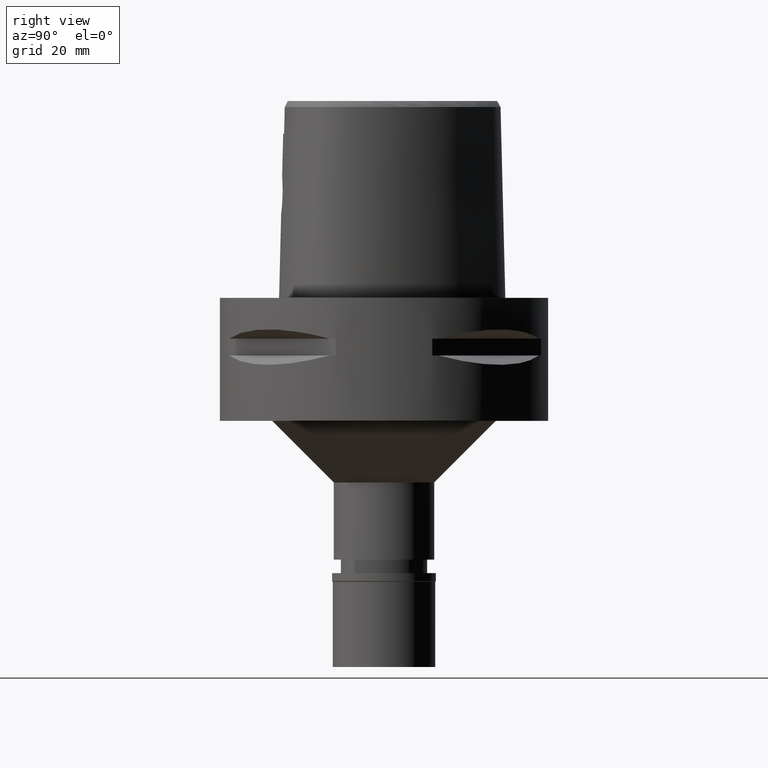
[diagram: clean part render]
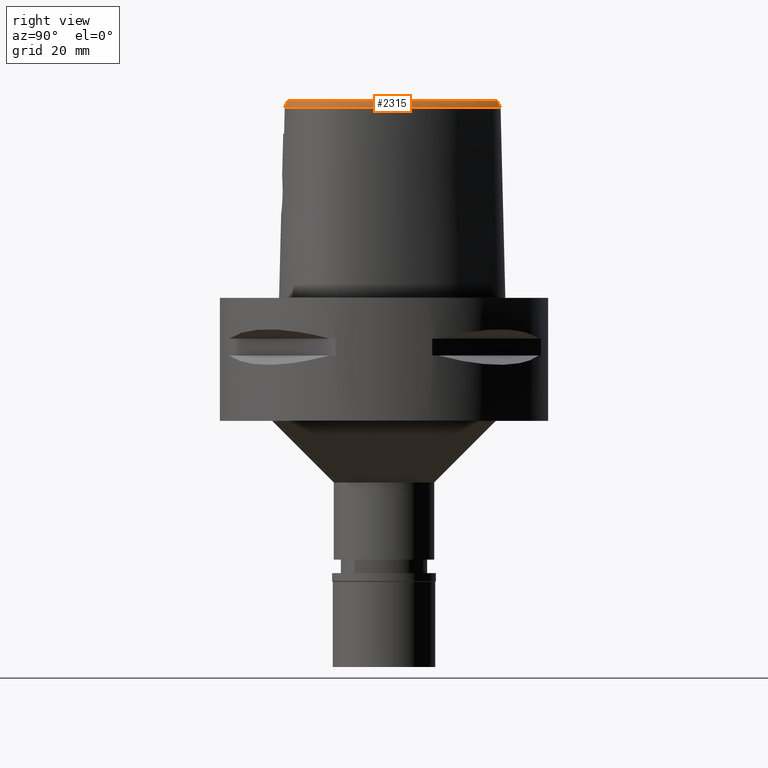
[diagram: same view with one face highlighted and labeled with its STEP entity id]
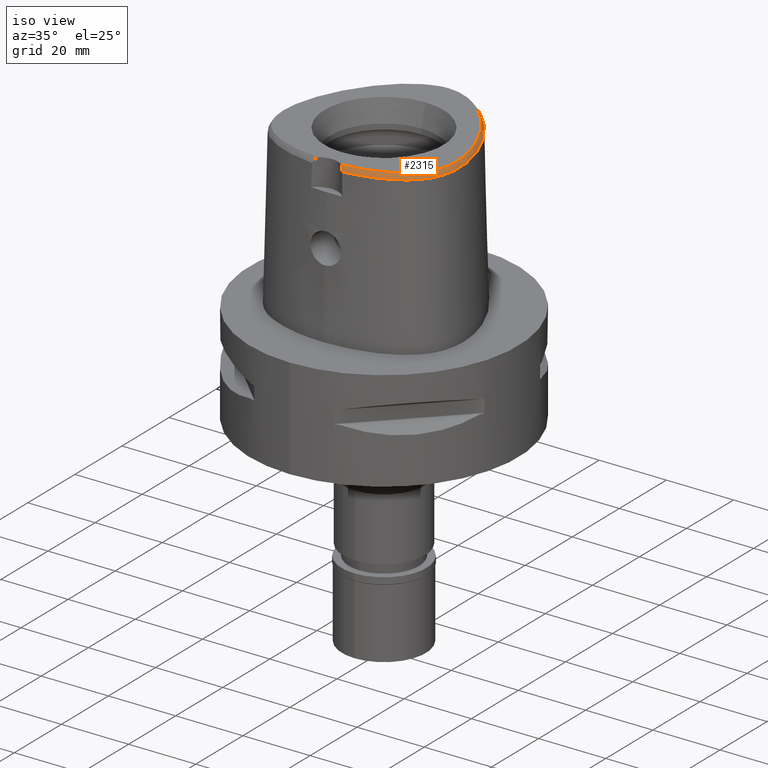
[diagram: same view with one face highlighted and labeled with its STEP entity id]
A machine part, right view. The second image highlights one B-rep face of the part: STEP entity #2315.
A second angle (iso view) of the same face is appended — the face is thin or edge-on in the first view.
In plain terms, the highlighted face is a freeform B-spline surface patch.
Its self-contained STEP definition (entity closure, byte-faithful):
#5 = CARTESIAN_POINT ( 'NONE',  ( 24.78780591084362683, 1.407047860335286282, 48.00000000000279243 ) ) ;
#14 = CARTESIAN_POINT ( 'NONE',  ( 26.57007235346000229, -8.432481388768000130, 46.33983244635000176 ) ) ;
#39 = CARTESIAN_POINT ( 'NONE',  ( 25.71441824537999565, 0.05726661908809999729, 46.95350733563999768 ) ) ;
#69 = CARTESIAN_POINT ( 'NONE',  ( 26.37690310366000190, -6.332050697974000109, 46.95350736385000090 ) ) ;
#93 = CARTESIAN_POINT ( 'NONE',  ( 11.23114004655000109, 23.21958592044000014, 47.56718160951000129 ) ) ;
#96 = CARTESIAN_POINT ( 'NONE',  ( 7.396182376302863126, -22.99483633013867845, 48.00000000000617462 ) ) ;
#109 = CARTESIAN_POINT ( 'NONE',  ( 23.18188527997486403, 6.195157684106701979, 48.00000000000365219 ) ) ;
#119 = CARTESIAN_POINT ( 'NONE',  ( 10.18191354607000143, 24.02236100422999598, 47.56718160915000482 ) ) ;
#121 = CARTESIAN_POINT ( 'NONE',  ( 9.079666835764285793, -22.67647771863789075, 48.00000000001163869 ) ) ;
#124 = CARTESIAN_POINT ( 'NONE',  ( 10.72916279449999877, -22.53955344326999821, 47.56718165904000273 ) ) ;
#144 = CARTESIAN_POINT ( 'NONE',  ( 11.01569293812999994, 22.95151098658000066, 48.18085635056999649 ) ) ;
#150 = CARTESIAN_POINT ( 'NONE',  ( 2.920846720423000420, -24.07923046652999943, 46.95350788995000357 ) ) ;
#164 = CARTESIAN_POINT ( 'NONE',  ( 23.53784508589602353, -15.81022840325140066, 46.52069747213678141 ) ) ;
#167 = CARTESIAN_POINT ( 'NONE',  ( 8.352378019026000189, 25.64042790896999691, 46.95350704522000029 ) ) ;
#172 = CARTESIAN_POINT ( 'NONE',  ( 9.271567193823999631, -23.58683500619999762, 46.33983232185000389 ) ) ;
#187 = CARTESIAN_POINT ( 'NONE',  ( 23.30296279190999797, 8.263867476382001698, 46.33983478888999485 ) ) ;
#193 = CARTESIAN_POINT ( 'NONE',  ( 13.50710554503999994, -21.33591505415000000, 48.18085629309999973 ) ) ;
#211 = CARTESIAN_POINT ( 'NONE',  ( 1.474165469676999907, 28.09254274917000060, 46.95350650487999644 ) ) ;
#216 = CARTESIAN_POINT ( 'NONE',  ( 5.615664731375999530, -23.15164468256000063, 48.18085617556000244 ) ) ;
#221 = CARTESIAN_POINT ( 'NONE',  ( 3.652533226355999751, -23.43985283522000174, 48.00000000000000000 ) ) ;
#236 = CARTESIAN_POINT ( 'NONE',  ( -0.7594463109211999630, 27.45967191047000000, 48.18085641814000297 ) ) ;
#241 = CARTESIAN_POINT ( 'NONE',  ( 20.44871707578000297, -17.59244093705000012, 48.18085634820999985 ) ) ;
#258 = CARTESIAN_POINT ( 'NONE',  ( 1.396492479134000098, 27.40898357006000197, 48.18085641341000525 ) ) ;
#262 = CARTESIAN_POINT ( 'NONE',  ( 24.02065913591000168, -15.31705758487999880, 46.33983216911000369 ) ) ;
#285 = CARTESIAN_POINT ( 'NONE',  ( 24.82176898743000137, -14.04364108708000103, 46.33983252213999293 ) ) ;
#304 = CARTESIAN_POINT ( 'NONE',  ( 0.7467112181010000516, 28.49926669294999826, 46.33983204534000322 ) ) ;
#310 = CARTESIAN_POINT ( 'NONE',  ( 18.00907884058999997, -19.27171833565000014, 48.18085629899999844 ) ) ;
#331 = CARTESIAN_POINT ( 'NONE',  ( 22.51193931559999939, -16.10581965173999919, 47.56718168458000662 ) ) ;
#356 = CARTESIAN_POINT ( 'NONE',  ( 25.44465490825999865, -11.80354635356999893, 46.95350714392999691 ) ) ;
#375 = CARTESIAN_POINT ( 'NONE',  ( 23.81116373424040589, 4.548397580874499191, 48.00000000000945022 ) ) ;
#384 = CARTESIAN_POINT ( 'NONE',  ( 22.36439718465999960, 7.835511400776001167, 48.18085606064000359 ) ) ;
#401 = CARTESIAN_POINT ( 'NONE',  ( 17.68852893097704992, 16.00958332232435666, 48.00000000000878231 ) ) ;
#411 = CARTESIAN_POINT ( 'NONE',  ( 25.97033850018999956, -4.025849490020999788, 47.56718175734000198 ) ) ;
#414 = CARTESIAN_POINT ( 'NONE',  ( 12.15683615293934139, -21.88711351951087636, 48.00000000000568434 ) ) ;
#438 = CARTESIAN_POINT ( 'NONE',  ( 26.08798196964000127, -9.324834868199001647, 46.95350686646000327 ) ) ;
#467 = CARTESIAN_POINT ( 'NONE',  ( 25.36252921206000011, -10.93171797661000078, 47.56718164795000092 ) ) ;
#482 = CARTESIAN_POINT ( 'NONE',  ( -2.553408000957999972E-11, 27.58331912251000162, 48.00000000000000000 ) ) ;
#491 = CARTESIAN_POINT ( 'NONE',  ( 14.53012782607999931, 20.17316190772000084, 47.56718259707999863 ) ) ;
#496 = CARTESIAN_POINT ( 'NONE',  ( 13.85101979429000174, -22.30866191715999847, 46.33983265495000126 ) ) ;
#507 = CARTESIAN_POINT ( 'NONE',  ( 25.79052179444476067, -6.319355031380079701, 48.00000000001389822 ) ) ;
#518 = CARTESIAN_POINT ( 'NONE',  ( 13.17234147663000066, 21.05120779910999929, 48.18085588136000297 ) ) ;
#525 = CARTESIAN_POINT ( 'NONE',  ( 4.349293971220999921, -23.28214867600999938, 48.18085613672000278 ) ) ;
#542 = CARTESIAN_POINT ( 'NONE',  ( 24.33934953590221895, -14.68006085516544346, 46.52069803563268380 ) ) ;
#546 = CARTESIAN_POINT ( 'NONE',  ( 7.225282691589000272, 25.87612818516999980, 47.56718184268999750 ) ) ;
#553 = FACE_OUTER_BOUND ( 'NONE', #3321, .T. ) ;
#567 = CARTESIAN_POINT ( 'NONE',  ( 4.386010846628000337, -24.10370528684999769, 46.70661763193000127 ) ) ;
#573 = CARTESIAN_POINT ( 'NONE',  ( 7.064821974801000160, 25.57190973225999997, 48.18085625313999287 ) ) ;
#577 = CARTESIAN_POINT ( 'NONE',  ( 3.157891514876999928, -23.72003559915999915, 47.56718206052999420 ) ) ;
#591 = CARTESIAN_POINT ( 'NONE',  ( -0.8011257464647999482, 28.14595775757999974, 46.95350647751999418 ) ) ;
#598 = CARTESIAN_POINT ( 'NONE',  ( 3.134642006960999705, -23.37701729632999914, 48.18085616210999689 ) ) ;
#616 = CARTESIAN_POINT ( 'NONE',  ( -0.01607538146699999740, 27.83300367430999955, 47.56718174155000156 ) ) ;
#623 = CARTESIAN_POINT ( 'NONE',  ( 23.86075009392999746, -14.31918854546999853, 47.56718159318999994 ) ) ;
#643 = CARTESIAN_POINT ( 'NONE',  ( 5.551463798894999968, 27.03226221538000118, 46.95350695191999790 ) ) ;
#648 = CARTESIAN_POINT ( 'NONE',  ( 22.20152521816999780, -16.93659326862999848, 46.95350694297000160 ) ) ;
#669 = CARTESIAN_POINT ( 'NONE',  ( 24.52062257262999623, -13.87739513149999837, 46.95350711729000182 ) ) ;
#687 = CARTESIAN_POINT ( 'NONE',  ( 0.7271320321002999743, 28.15584034836999905, 46.95350681673000537 ) ) ;
#693 = CARTESIAN_POINT ( 'NONE',  ( 24.52950826845000165, -12.27277311865999998, 48.18085627574999563 ) ) ;
#720 = CARTESIAN_POINT ( 'NONE',  ( 24.79527220728000003, -11.57644793548000095, 48.18085630295999522 ) ) ;
#741 = CARTESIAN_POINT ( 'NONE',  ( 25.11996355776999934, -11.68999714452000127, 47.56718172344999829 ) ) ;
#761 = CARTESIAN_POINT ( 'NONE',  ( 4.491298471527296776, 26.80158405531928878, 48.00000000000722622 ) ) ;
#770 = CARTESIAN_POINT ( 'NONE',  ( 24.90579575245000044, 3.122503042918999938, 46.95350697900999393 ) ) ;
#793 = CARTESIAN_POINT ( 'NONE',  ( 10.03889926273917865, 23.82643791975507952, 48.00000000000724754 ) ) ;
#801 = CARTESIAN_POINT ( 'NONE',  ( 24.36319900932999616, 4.746352365009999907, 46.95350679185000331 ) ) ;
#814 = CARTESIAN_POINT ( 'NONE',  ( 2.140583849880724809, 27.40603513869769614, 48.00000000000714095 ) ) ;
#824 = CARTESIAN_POINT ( 'NONE',  ( 25.90827239679000016, -10.20249352515000041, 46.95350690256000092 ) ) ;
#853 = CARTESIAN_POINT ( 'NONE',  ( 26.42669480183000275, -9.384675292628999799, 46.33983212423999731 ) ) ;
#882 = CARTESIAN_POINT ( 'NONE',  ( 10.38468740047000161, 24.30015199180000351, 46.95350686756999892 ) ) ;
#886 = CARTESIAN_POINT ( 'NONE',  ( 21.18145661121820567, -17.09850743469524659, 48.00000000000414246 ) ) ;
#888 = CARTESIAN_POINT ( 'NONE',  ( 9.200631956198998651, -23.25032489662999780, 46.95350699102999670 ) ) ;
#897 = CARTESIAN_POINT ( 'NONE',  ( 25.33687583872577420, -10.06999584063170161, 48.00000000001205080 ) ) ;
#907 = CARTESIAN_POINT ( 'NONE',  ( 9.352045218944999405, 25.01606129186999894, 46.95350701217999756 ) ) ;
#928 = CARTESIAN_POINT ( 'NONE',  ( 20.76159157987651938, 13.99289103072043972, 46.52070817855894802 ) ) ;
#930 = CARTESIAN_POINT ( 'NONE',  ( 16.77715476859999910, 17.59673481315000032, 47.56718152093999663 ) ) ;
#956 = CARTESIAN_POINT ( 'NONE',  ( 17.31425342957000169, 18.02638370828999825, 46.33983178761999966 ) ) ;
#981 = CARTESIAN_POINT ( 'NONE',  ( 14.28087360732000022, 19.93621322659999606, 48.18085593791000321 ) ) ;
#985 = CARTESIAN_POINT ( 'NONE',  ( 12.22735833469000077, -22.11919352745999845, 47.56718175666000548 ) ) ;
#1003 = CARTESIAN_POINT ( 'NONE',  ( -0.4991393622686999820, 27.47445455099000000, 48.18085634199999845 ) ) ;
#1009 = CARTESIAN_POINT ( 'NONE',  ( 15.16972260631999880, -21.80725274422000126, 46.33983231658000079 ) ) ;
#1022 = CARTESIAN_POINT ( 'NONE',  ( 26.56868348264749358, -7.988862950300611665, 46.52070085311219572 ) ) ;
#1033 = CARTESIAN_POINT ( 'NONE',  ( 21.09839278440000143, -18.39411121500000235, 46.33983214906999848 ) ) ;
#1052 = CARTESIAN_POINT ( 'NONE',  ( -0.8219654642365999964, 28.48910068113000094, 46.33983150721000044 ) ) ;
#1057 = CARTESIAN_POINT ( 'NONE',  ( 16.38663311092999919, -21.27887554714000018, 46.33983275937000457 ) ) ;
#1079 = CARTESIAN_POINT ( 'NONE',  ( 20.66527564532000127, -17.85966436302999938, 47.56718161516000265 ) ) ;
#1097 = CARTESIAN_POINT ( 'NONE',  ( 3.746843149747000279, 27.28920340988999982, 47.56718183463999594 ) ) ;
#1101 = CARTESIAN_POINT ( 'NONE',  ( 25.48324249671000175, -12.66682718605999902, 46.33983281423999756 ) ) ;
#1127 = CARTESIAN_POINT ( 'NONE',  ( 24.24901697541000090, 2.918228339474000066, 48.18085633146999669 ) ) ;
#1148 = CARTESIAN_POINT ( 'NONE',  ( 25.69293836655999996, -11.02734448011000090, 46.95350696138999780 ) ) ;
#1166 = CARTESIAN_POINT ( 'NONE',  ( 25.60516200877346549, -2.794192459352598856, 48.00000000000290612 ) ) ;
#1174 = CARTESIAN_POINT ( 'NONE',  ( 24.68980812097999689, 1.381181762872000007, 48.18085632705999899 ) ) ;
#1194 = CARTESIAN_POINT ( 'NONE',  ( 25.78811069501291087, -5.218135357747325287, 48.00000000001058709 ) ) ;
#1204 = CARTESIAN_POINT ( 'NONE',  ( 25.50456386081000204, -2.806580842982000057, 48.18085631207999597 ) ) ;
#1208 = CARTESIAN_POINT ( 'NONE',  ( 23.26225374360306475, -14.77782433120870387, 48.00000000000495248 ) ) ;
#1231 = CARTESIAN_POINT ( 'NONE',  ( 25.57319935689999824, -10.12479546886000037, 47.56718162362000157 ) ) ;
#1233 = CARTESIAN_POINT ( 'NONE',  ( 24.32795549673482327, -12.97211154200424410, 48.00000000001075762 ) ) ;
#1235 = B_SPLINE_CURVE_WITH_KNOTS ( 'NONE', 3,
 ( #1309, #567, #2124, #4833, #4363, #3981 ),
 .UNSPECIFIED., .F., .F.,
 ( 4, 1, 1, 4 ),
 ( 0.0000000000000000000, 0.3333333333333000081, 0.6666666666667000474, 1.000000000000000000 ),
 .UNSPECIFIED. ) ;
#1245 = VERTEX_POINT ( 'NONE', #4318 ) ;
#1264 = CARTESIAN_POINT ( 'NONE',  ( 21.26020906007000022, 11.53284416706000037, 46.95350704936999620 ) ) ;
#1267 = CARTESIAN_POINT ( 'NONE',  ( 3.652533226355999751, -23.43985283522000174, 48.00000000000000000 ) ) ;
#1269 = CARTESIAN_POINT ( 'NONE',  ( 4.446704805452000642, -24.30904346587999854, 46.33983409045000457 ) ) ;
#1293 = CARTESIAN_POINT ( 'NONE',  ( 18.96185304229000224, 14.61891439689000016, 47.56718187013999710 ) ) ;
#1309 = CARTESIAN_POINT ( 'NONE',  ( 4.472216720976999405, -24.20009030094000124, 46.52069014668999358 ) ) ;
#1312 = CARTESIAN_POINT ( 'NONE',  ( 25.61240997289991483, -12.23358473966909266, 46.52069916262448857 ) ) ;
#1314 = CARTESIAN_POINT ( 'NONE',  ( 18.67639059971000037, 14.42714315641999967, 48.18085624167999725 ) ) ;
#1335 = CARTESIAN_POINT ( 'NONE',  ( 17.84219066873810888, -20.48406917474678579, 46.52069465465724818 ) ) ;
#1337 = CARTESIAN_POINT ( 'NONE',  ( 19.24731548487999788, 14.81068563736000065, 46.95350749861000139 ) ) ;
#1345 = CARTESIAN_POINT ( 'NONE',  ( 10.89998046633000151, -23.20582276718000259, 46.33983231733999730 ) ) ;
#1349 = ORIENTED_EDGE ( 'NONE', *, *, #2637, .F. ) ;
#1367 = CARTESIAN_POINT ( 'NONE',  ( 20.96009135475000207, 11.36493737868999965, 47.56718168433999949 ) ) ;
#1372 = CARTESIAN_POINT ( 'NONE',  ( 7.379517170706000329, -22.89486424522999997, 48.18085633680999535 ) ) ;
#1388 = CARTESIAN_POINT ( 'NONE',  ( 3.103852640821999742, 28.16334882223000236, 46.33983265975999899 ) ) ;
#1392 = CARTESIAN_POINT ( 'NONE',  ( 23.02501420229999951, -16.56410068457999785, 46.33983241533000097 ) ) ;
#1406 = CARTESIAN_POINT ( 'NONE',  ( -0.7802860286930000111, 27.80281483401999765, 47.56718144782999502 ) ) ;
#1413 = CARTESIAN_POINT ( 'NONE',  ( 20.88183421485999958, -18.12688778901000219, 46.95350688212000279 ) ) ;
#1429 = CARTESIAN_POINT ( 'NONE',  ( -0.5271213569646999719, 28.16162122776000132, 46.95350691805999332 ) ) ;
#1439 = CARTESIAN_POINT ( 'NONE',  ( 19.46658408585000188, -19.58253170921999953, 46.33983321641999709 ) ) ;
#1459 = CARTESIAN_POINT ( 'NONE',  ( -0.5411123543128000257, 28.50520456614999887, 46.33983220607999698 ) ) ;
#1465 = CARTESIAN_POINT ( 'NONE',  ( 20.11867313635999821, -18.71409286040000097, 46.95350724256000063 ) ) ;
#1487 = CARTESIAN_POINT ( 'NONE',  ( 23.17963412797999823, -14.71908101977999905, 48.18085634602999789 ) ) ;
#1512 = CARTESIAN_POINT ( 'NONE',  ( 26.32891502782000259, -1.312601130446999997, 46.33983244238000765 ) ) ;
#1545 = CARTESIAN_POINT ( 'NONE',  ( 24.57740636392999889, 3.020365691197000046, 47.56718165523999886 ) ) ;
#1560 = CARTESIAN_POINT ( 'NONE',  ( 25.14129527416686471, -0.06715740301638856158, 48.00000000000206057 ) ) ;
#1569 = CARTESIAN_POINT ( 'NONE',  ( 26.31328819883999870, -3.999908760940000363, 46.95350722586000103 ) ) ;
#1596 = CARTESIAN_POINT ( 'NONE',  ( 25.23812631700999987, -10.04709741258000122, 48.18085634468999956 ) ) ;
#1602 = CARTESIAN_POINT ( 'NONE',  ( 24.89096213678511660, -11.60991207239676370, 48.00000000000071054 ) ) ;
#1627 = CARTESIAN_POINT ( 'NONE',  ( 26.24334543667999853, -10.28019158143000134, 46.33983218149000294 ) ) ;
#1631 = CARTESIAN_POINT ( 'NONE',  ( 13.54089058450235683, -21.43147460489013767, 48.00000000000199663 ) ) ;
#1653 = CARTESIAN_POINT ( 'NONE',  ( 21.56032676538999837, 11.70075095543999844, 46.33983241439000267 ) ) ;
#1655 = CARTESIAN_POINT ( 'NONE',  ( 24.62320007856554938, -12.31148373401188323, 48.00000000000454037 ) ) ;
#1665 = CARTESIAN_POINT ( 'NONE',  ( 14.35433142683409713, 20.00604447574906075, 48.00000000000262901 ) ) ;
#1677 = CARTESIAN_POINT ( 'NONE',  ( 9.979139691679000279, 23.74457001665999911, 48.18085635072999651 ) ) ;
#1680 = CARTESIAN_POINT ( 'NONE',  ( 18.95779336836848827, -18.80349047535008111, 47.99999999999913314 ) ) ;
#1682 = CARTESIAN_POINT ( 'NONE',  ( 14.78163346265000122, -20.85125503952000159, 48.18085632996999834 ) ) ;
#1703 = CARTESIAN_POINT ( 'NONE',  ( 22.67725238707999935, 7.978296759311000130, 47.56718230338999120 ) ) ;
#1708 = CARTESIAN_POINT ( 'NONE',  ( 4.414234527375000106, -23.96674520259000118, 46.95350810587999746 ) ) ;
#1722 = CARTESIAN_POINT ( 'NONE',  ( 21.61408639850731106, -17.89738970854454436, 46.52069634514494822 ) ) ;
#1724 = CARTESIAN_POINT ( 'NONE',  ( 19.69829950764999893, 12.83692850969000077, 48.18085632625000159 ) ) ;
#1746 = CARTESIAN_POINT ( 'NONE',  ( 21.55152200846000099, 9.524255099130998659, 48.18085611216000785 ) ) ;
#1753 = CARTESIAN_POINT ( 'NONE',  ( 13.62174362812999995, -21.66016400847999890, 47.56718174705000735 ) ) ;
#1775 = CARTESIAN_POINT ( 'NONE',  ( 4.381764249297999569, -23.62444693930000028, 47.56718212130000722 ) ) ;
#1792 = CARTESIAN_POINT ( 'NONE',  ( 5.680170164860999904, 27.35122825411000136, 46.33983225980999521 ) ) ;
#1797 = CARTESIAN_POINT ( 'NONE',  ( 23.91832974300999837, -13.54490322036000016, 48.18085630757999382 ) ) ;
#1811 = CARTESIAN_POINT ( 'NONE',  ( 1.513001964947999989, 28.43432233871999770, 46.33983155061000048 ) ) ;
#1817 = CARTESIAN_POINT ( 'NONE',  ( 21.57424354764999919, -17.53412714682000129, 46.95350688566000485 ) ) ;
#1845 = CARTESIAN_POINT ( 'NONE',  ( 24.54663821511999799, -13.07716267164999913, 47.56718152721999360 ) ) ;
#1861 = EDGE_CURVE ( 'NONE', #2597, #1245, #3878, .T. ) ;
#1869 = CARTESIAN_POINT ( 'NONE',  ( 18.35612523714999966, -19.86563335065000047, 46.95350716684999526 ) ) ;
#1891 = CARTESIAN_POINT ( 'NONE',  ( 16.09842193975999791, -20.65431254768000002, 47.56718177428000160 ) ) ;
#1919 = CARTESIAN_POINT ( 'NONE',  ( 26.18725531408999885, -2.722509279091000156, 46.95350709118999788 ) ) ;
#1935 = CARTESIAN_POINT ( 'NONE',  ( 24.34579675531568910, 2.948329282943710439, 48.00000000000659384 ) ) ;
#1945 = CARTESIAN_POINT ( 'NONE',  ( 26.22870933793999981, -8.390355435870999301, 46.95350706951000319 ) ) ;
#1959 = CARTESIAN_POINT ( 'NONE',  ( 18.76051936065697134, 14.48366014233289256, 48.00000000001217160 ) ) ;
#1968 = CARTESIAN_POINT ( 'NONE',  ( 25.65083532122000065, -1.428055304071000009, 47.56718169164000187 ) ) ;
#1983 = CARTESIAN_POINT ( 'NONE',  ( 22.45659887780548303, 7.877591736060463923, 48.00000000000958522 ) ) ;
#1993 = CARTESIAN_POINT ( 'NONE',  ( 23.08801002318999807, 6.156954503356000252, 48.18085620528999158 ) ) ;
#1998 = CARTESIAN_POINT ( 'NONE',  ( 22.82172265263834987, -15.36274108902385471, 48.00000000000625988 ) ) ;
#2012 = CARTESIAN_POINT ( 'NONE',  ( 0.6937438505403781264, 27.57019898701131666, 48.00000000000195399 ) ) ;
#2023 = CARTESIAN_POINT ( 'NONE',  ( 13.88833009092999937, 21.79406463467000066, 46.33983643448000578 ) ) ;
#2030 = B_SPLINE_SURFACE_WITH_KNOTS ( 'NONE', 3, 3, ( 
 ( #3233, #2443, #150, #3993 ),
 ( #598, #577, #3258, #4876 ),
 ( #3705, #4017, #2080, #2846 ),
 ( #525, #1775, #1708, #1269 ),
 ( #216, #2816, #3609, #2519 ),
 ( #1372, #4484, #4379, #2110 ),
 ( #4455, #3659, #888, #172 ),
 ( #2055, #124, #4843, #1345 ),
 ( #4068, #985, #2136, #3681 ),
 ( #193, #1753, #2160, #496 ),
 ( #1682, #4526, #3374, #1009 ),
 ( #3779, #1891, #2586, #1057 ),
 ( #3015, #2653, #2253, #3040 ),
 ( #310, #2183, #1869, #2279 ),
 ( #4505, #4570, #4944, #1439 ),
 ( #4137, #4902, #1465, #3399 ),
 ( #241, #1079, #1413, #1033 ),
 ( #4210, #4182, #1817, #3421 ),
 ( #3828, #2963, #648, #3352 ),
 ( #2205, #331, #3755, #1392 ),
 ( #2941, #2559, #3732, #2626 ),
 ( #1487, #4111, #2993, #262 ),
 ( #4549, #623, #2227, #2606 ),
 ( #1797, #4159, #669, #285 ),
 ( #4922, #1845, #4990, #4968 ),
 ( #693, #3808, #4595, #1101 ),
 ( #720, #741, #356, #3955 ),
 ( #2351, #467, #1148, #4677 ),
 ( #1596, #1231, #824, #1627 ),
 ( #3927, #2300, #438, #853 ),
 ( #3069, #3146, #1945, #14 ),
 ( #3854, #2729, #2699, #2754 ),
 ( #3446, #2778, #69, #4647 ),
 ( #4340, #3175, #3903, #5041 ),
 ( #4262, #411, #1569, #4733 ),
 ( #1204, #2402, #1919, #4288 ),
 ( #5013, #1968, #3518, #1512 ),
 ( #3094, #4623, #39, #3115 ),
 ( #1174, #3471, #4705, #3495 ),
 ( #1127, #1545, #770, #2676 ),
 ( #4316, #2326, #801, #2376 ),
 ( #1993, #3546, #4234, #3879 ),
 ( #384, #1703, #2131, #187 ),
 ( #1746, #4867, #2535, #4423 ),
 ( #4449, #1367, #1264, #1653 ),
 ( #1724, #4063, #3253, #3300 ),
 ( #1314, #1293, #1337, #2891 ),
 ( #2915, #3677, #3228, #2810 ),
 ( #4480, #930, #3604, #956 ),
 ( #2436, #2514, #4370, #2486 ),
 ( #981, #491, #2863, #2460 ),
 ( #518, #3275, #4085, #2023 ),
 ( #2051, #3200, #4034, #3577 ),
 ( #144, #93, #4763, #4400 ),
 ( #1677, #119, #882, #2839 ),
 ( #3987, #4796, #907, #4012 ),
 ( #3627, #4818, #167, #2075 ),
 ( #573, #546, #2104, #3654 ),
 ( #4838, #2245, #2620, #3702 ),
 ( #4565, #4963, #643, #1792 ),
 ( #4133, #2555, #4501, #4106 ),
 ( #3802, #1097, #2579, #3347 ),
 ( #3727, #3392, #2987, #1388 ),
 ( #3749, #2200, #4917, #2178 ),
 ( #258, #4176, #211, #1811 ),
 ( #3773, #4940, #687, #304 ),
 ( #2937, #616, #2645, #3368 ),
 ( #1003, #4544, #1429, #1459 ),
 ( #236, #1406, #591, #1052 ) ),
 .UNSPECIFIED., .F., .F., .F.,
 ( 4, 1, 1, 1, 1, 1, 1, 1, 1, 1, 1, 1, 1, 1, 1, 1, 1, 1, 1, 1, 1, 1, 1, 1, 1, 1, 1, 1, 1, 1, 1, 1, 1, 1, 1, 1, 1, 1, 1, 1, 1, 1, 1, 1, 1, 1, 1, 1, 1, 1, 1, 1, 1, 1, 1, 1, 1, 1, 1, 1, 1, 1, 1, 1, 1, 1, 4 ),
 ( 4, 4 ),
 ( -0.006501344654137999890, 0.0000000000000000000, 0.001084806278982999904, 0.01694060300470999827, 0.03279639973041999917, 0.04865219645615000144, 0.06450799318185999887, 0.08036378990756999630, 0.09621958663328000760, 0.1120753833589999970, 0.1279311800848000058, 0.1437869768104999835, 0.1596427735361999889, 0.1754985702619000221, 0.1913543669875999997, 0.2072101637133000052, 0.2230659604390000106, 0.2389217571648000193, 0.2547775538904999970, 0.2706333506161999747, 0.2864891473419000079, 0.3023449440675999855, 0.3182007407932999632, 0.3340565375190999720, 0.3499123342448000051, 0.3657681309706000139, 0.3816239276962999916, 0.3974797244219999692, 0.4133355211477000024, 0.4291913178734000356, 0.4450471145992000443, 0.4609029113249000220, 0.4767587080505999997, 0.4926145047763000329, 0.5084703015020000105, 0.5243260982276999327, 0.5401818949534999970, 0.5560376916792000301, 0.5718934884048999523, 0.5877492851305999855, 0.6036050818563000187, 0.6194608785820000518, 0.6353166753076999740, 0.6511724720334999272, 0.6670282687592000714, 0.6828840654848999936, 0.6987398622106000268, 0.7145956589363000599, 0.7304514556619999821, 0.7463072523879000775, 0.7621630491135999996, 0.7780188458392999218, 0.7938746425650000660, 0.8097304392906999881, 0.8255862360164000213, 0.8414420327421000545, 0.8572978294679000077, 0.8731536261936000409, 0.8890094229192999631, 0.9048652196450001073, 0.9207210163707000294, 0.9365768130963999516, 0.9524326098222000159, 0.9682884065478999380, 0.9841442032736000822, 1.000000000000000000, 1.017074182962999895 ),
 ( -0.09832414364661999640, 1.098324143640999839 ),
 .UNSPECIFIED. ) ;
#2051 = CARTESIAN_POINT ( 'NONE',  ( 12.08109925417999975, 22.05583665308000008, 48.18085607148000094 ) ) ;
#2055 = CARTESIAN_POINT ( 'NONE',  ( 10.64375395859000051, -22.20641878131000269, 48.18085632988999834 ) ) ;
#2075 = CARTESIAN_POINT ( 'NONE',  ( 8.527662436981000127, 25.93634698003000238, 46.33983240783000213 ) ) ;
#2080 = CARTESIAN_POINT ( 'NONE',  ( 3.483812858687999725, -24.04167856798999736, 46.95350802037999927 ) ) ;
#2104 = CARTESIAN_POINT ( 'NONE',  ( 7.385743408376000296, 26.18034663808000317, 46.95350743224999945 ) ) ;
#2110 = CARTESIAN_POINT ( 'NONE',  ( 7.549160354875000145, -23.91252842665000244, 46.33983225374999648 ) ) ;
#2124 = CARTESIAN_POINT ( 'NONE',  ( 4.209589893013998996, -23.91901121109000172, 47.06412532816000294 ) ) ;
#2131 = CARTESIAN_POINT ( 'NONE',  ( 22.99010758949999911, 8.121082117847000958, 46.95350854614000013 ) ) ;
#2135 = EDGE_CURVE ( 'NONE', #4618, #3496, #2596, .T. ) ;
#2136 = CARTESIAN_POINT ( 'NONE',  ( 12.32734872923000147, -22.44824987515000103, 46.95350722422000445 ) ) ;
#2152 = CARTESIAN_POINT ( 'NONE',  ( 8.153873202539777765, -23.84765792154228592, 46.52069127368184809 ) ) ;
#2160 = CARTESIAN_POINT ( 'NONE',  ( 13.73638171121000084, -21.98441296281999868, 46.95350720100000075 ) ) ;
#2178 = CARTESIAN_POINT ( 'NONE',  ( 2.296923980618000183, 28.32336116044999841, 46.33983180983999972 ) ) ;
#2183 = CARTESIAN_POINT ( 'NONE',  ( 18.18260203887000159, -19.56867584315000030, 47.56718173293000262 ) ) ;
#2200 = CARTESIAN_POINT ( 'NONE',  ( 2.181342910979999772, 27.64518900911999921, 47.56718152673000333 ) ) ;
#2205 = CARTESIAN_POINT ( 'NONE',  ( 22.25540187226000199, -15.87667913533000252, 48.18085631921000100 ) ) ;
#2227 = CARTESIAN_POINT ( 'NONE',  ( 24.15188536330999725, -14.50240050383999879, 46.95350682898000372 ) ) ;
#2245 = CARTESIAN_POINT ( 'NONE',  ( 6.307024970309000445, 26.33047108220999988, 47.56718177323000418 ) ) ;
#2253 = CARTESIAN_POINT ( 'NONE',  ( 17.34635366832000258, -20.42400295080999939, 46.95350699373000225 ) ) ;
#2279 = CARTESIAN_POINT ( 'NONE',  ( 18.52964843543000129, -20.16259085813999619, 46.33983260077999944 ) ) ;
#2300 = CARTESIAN_POINT ( 'NONE',  ( 25.74926913746000068, -9.264994443767999854, 47.56718160868999945 ) ) ;
#2315 = ADVANCED_FACE ( 'NONE', ( #553 ), #2030, .F. ) ;
#2319 = CARTESIAN_POINT ( 'NONE',  ( 15.47311546589761733, 18.77848662925463685, 48.00000000000986233 ) ) ;
#2326 = CARTESIAN_POINT ( 'NONE',  ( 24.03947963240999997, 4.630269566916999757, 47.56718157782999867 ) ) ;
#2342 = CARTESIAN_POINT ( 'NONE',  ( 12.14811716929328611, 22.13187320258732527, 47.99999999999837286 ) ) ;
#2343 = CARTESIAN_POINT ( 'NONE',  ( -2.553408000957999972E-11, 27.58331912251000162, 48.00000000000000000 ) ) ;
#2351 = CARTESIAN_POINT ( 'NONE',  ( 25.03212005756000025, -10.83609147311999976, 48.18085633450999694 ) ) ;
#2364 = CARTESIAN_POINT ( 'NONE',  ( 16.58774972841635886, 17.44522137221847302, 48.00000000000755307 ) ) ;
#2376 = CARTESIAN_POINT ( 'NONE',  ( 24.68691838624999946, 4.862435163103000058, 46.33983200585999640 ) ) ;
#2402 = CARTESIAN_POINT ( 'NONE',  ( 25.84590958744999867, -2.764545061036999929, 47.56718170163000536 ) ) ;
#2436 = CARTESIAN_POINT ( 'NONE',  ( 15.39672608085999883, 18.71187633794999527, 48.18085623349999480 ) ) ;
#2443 = CARTESIAN_POINT ( 'NONE',  ( 2.899523003316000214, -23.73609250068999899, 47.56718203199999806 ) ) ;
#2450 = CARTESIAN_POINT ( 'NONE',  ( 25.51037851176892701, -9.222789616918259270, 48.00000000000570566 ) ) ;
#2460 = CARTESIAN_POINT ( 'NONE',  ( 15.02863626361000016, 20.64705926994999885, 46.33983591540999925 ) ) ;
#2471 = ORIENTED_EDGE ( 'NONE', *, *, #2135, .T. ) ;
#2484 = CARTESIAN_POINT ( 'NONE',  ( 24.69258566271340882, -14.08975149522274783, 46.52069831738064920 ) ) ;
#2486 = CARTESIAN_POINT ( 'NONE',  ( 16.17433055981999956, 19.38993469433000172, 46.33983320211999768 ) ) ;
#2512 = CARTESIAN_POINT ( 'NONE',  ( 1.375467128704464859, 28.41206022877211979, 46.52071663099749799 ) ) ;
#2514 = CARTESIAN_POINT ( 'NONE',  ( 15.65592757383999967, 18.93789579006999801, 47.56718188970999961 ) ) ;
#2519 = CARTESIAN_POINT ( 'NONE',  ( 5.742452841842999867, -24.17552360655999877, 46.33983373398999817 ) ) ;
#2535 = CARTESIAN_POINT ( 'NONE',  ( 22.16493873753999821, 9.835346297092000256, 46.95350824799999856 ) ) ;
#2555 = CARTESIAN_POINT ( 'NONE',  ( 4.570172548201000495, 27.03099514410000026, 47.56718176693000544 ) ) ;
#2559 = CARTESIAN_POINT ( 'NONE',  ( 23.01129456209000068, -15.51413054431000127, 47.56718179519000245 ) ) ;
#2579 = CARTESIAN_POINT ( 'NONE',  ( 3.841194694158999834, 27.61997516214000115, 46.95350741276999429 ) ) ;
#2586 = CARTESIAN_POINT ( 'NONE',  ( 16.24252752534000166, -20.96659404741000188, 46.95350726682000442 ) ) ;
#2596 = B_SPLINE_CURVE_WITH_KNOTS ( 'NONE', 3,
 ( #482, #3869, #2012, #2745, #814, #2798, #3508, #761, #3566, #3191, #3595, #4663, #4751, #793, #3895, #2342, #3486, #1665, #2319, #2364, #401, #1959, #4357, #3918, #2719, #1983, #109, #375, #1935, #5, #1560, #3107, #1166, #3136, #1194, #507, #2827, #4390, #2450, #897, #4003, #1602, #1655, #1233, #3606, #4291, #1208, #1998, #4820, #2781, #886, #2756, #3581, #1680, #3178, #4766, #4708, #3906, #1631, #414, #2844, #121, #96, #3552, #3256, #3202, #1267 ),
 .UNSPECIFIED., .F., .F.,
 ( 4, 1, 1, 1, 1, 1, 1, 1, 1, 1, 1, 1, 1, 1, 1, 1, 1, 1, 1, 1, 1, 1, 1, 1, 1, 1, 1, 1, 1, 1, 1, 1, 1, 1, 1, 1, 1, 1, 1, 1, 1, 1, 1, 1, 1, 1, 1, 1, 1, 1, 1, 1, 1, 1, 1, 1, 1, 1, 1, 1, 1, 1, 1, 1, 4 ),
 ( 0.0000000000000000000, 0.01585579672639991777, 0.03171159345210006197, 0.04756739017779998413, 0.06342318690360004840, 0.07927898362929997056, 0.09513478035499989272, 0.1109905770807000369, 0.1268463738063999591, 0.1427021705320999923, 0.1585579672578999455, 0.1744137639835999787, 0.1902695607093000119, 0.2061253574349999340, 0.2219811541607000782, 0.2378369508864000004, 0.2536927476120999225, 0.2695485443380000179, 0.2854043410636999401, 0.3012601377893999732, 0.3171159345151000064, 0.3329717312407999286, 0.3488275279665000728, 0.3646833246923000260, 0.3805391214179999482, 0.3963949181436999813, 0.4122507148694000145, 0.4281065115951000477, 0.4439623083207999699, 0.4598181050465000030, 0.4756739017723000673, 0.4915296984979999895, 0.5073854952237000226, 0.5232412919494000558, 0.5390970886750999780, 0.5549528854007999001, 0.5708086821265999644, 0.5866644788522999976, 0.6025202755780000308, 0.6183760723036999529, 0.6342318690293999861, 0.6500876657551999394, 0.6659434624808999725, 0.6817992592067000368, 0.6976550559323999590, 0.7135108526580999921, 0.7293666493838000253, 0.7452224461095000585, 0.7610782428351999807, 0.7769340395610000449, 0.7927898362866999671, 0.8086456330124000003, 0.8245014297380999224, 0.8403572264637999556, 0.8562130231894999888, 0.8720688199152000220, 0.8879246166409999752, 0.9037804133667199924, 0.9196362100924300176, 0.9354920068181400428, 0.9513478035438499569, 0.9672036002695799661, 0.9830593969952899913, 0.9989151937210170029, 1.000000000000000000 ),
 .UNSPECIFIED. ) ;
#2597 = VERTEX_POINT ( 'NONE', #3668 ) ;
#2606 = CARTESIAN_POINT ( 'NONE',  ( 24.44302063269000058, -14.68561246221999994, 46.33983206477000039 ) ) ;
#2620 = CARTESIAN_POINT ( 'NONE',  ( 6.451957605632999915, 26.64239279669000027, 46.95350726428999621 ) ) ;
#2626 = CARTESIAN_POINT ( 'NONE',  ( 23.54886641669000014, -15.94342785152999831, 46.33983283959999966 ) ) ;
#2637 = EDGE_CURVE ( 'NONE', #1245, #3496, #1235, .T. ) ;
#2645 = CARTESIAN_POINT ( 'NONE',  ( -0.01660248448002000013, 28.17700479068000163, 46.95350718769000053 ) ) ;
#2653 = CARTESIAN_POINT ( 'NONE',  ( 17.18751911908000096, -20.11894272902999958, 47.56718166132999670 ) ) ;
#2676 = CARTESIAN_POINT ( 'NONE',  ( 25.23418514097000198, 3.224640394641999919, 46.33983230278000320 ) ) ;
#2699 = CARTESIAN_POINT ( 'NONE',  ( 26.32657108292000103, -7.394156873180999234, 46.95350752212999623 ) ) ;
#2719 = CARTESIAN_POINT ( 'NONE',  ( 21.64191216433315290, 9.570096010441918821, 48.00000000000537881 ) ) ;
#2729 = CARTESIAN_POINT ( 'NONE',  ( 25.98350863954999923, -7.369513040848000074, 47.56718187986999880 ) ) ;
#2745 = CARTESIAN_POINT ( 'NONE',  ( 1.407937999592453693, 27.50970958195355109, 48.00000000000557066 ) ) ;
#2754 = CARTESIAN_POINT ( 'NONE',  ( 26.66963352630000017, -7.418800705514000171, 46.33983316439000077 ) ) ;
#2756 = CARTESIAN_POINT ( 'NONE',  ( 20.51253914625319652, -17.67119446946025008, 48.00000000000141398 ) ) ;
#2778 = CARTESIAN_POINT ( 'NONE',  ( 26.03304284576999805, -6.324605823588999698, 47.56718181440999871 ) ) ;
#2781 = CARTESIAN_POINT ( 'NONE',  ( 21.78596494080868595, -16.52262878100079035, 47.99999999999937472 ) ) ;
#2791 = ORIENTED_EDGE ( 'NONE', *, *, #3545, .T. ) ;
#2798 = CARTESIAN_POINT ( 'NONE',  ( 2.897393261679487075, 27.25600202852740139, 48.00000000000391509 ) ) ;
#2810 = CARTESIAN_POINT ( 'NONE',  ( 18.43868554983999886, 16.55986444246000033, 46.33983280527999682 ) ) ;
#2816 = CARTESIAN_POINT ( 'NONE',  ( 5.657927434864999938, -23.49293765722999794, 47.56718202836999865 ) ) ;
#2827 = CARTESIAN_POINT ( 'NONE',  ( 25.74155027847965727, -7.352132003089358214, 48.00000000000891731 ) ) ;
#2839 = CARTESIAN_POINT ( 'NONE',  ( 10.58746125485999912, 24.57794297937000039, 46.33983212598000279 ) ) ;
#2844 = CARTESIAN_POINT ( 'NONE',  ( 10.66892483386896906, -22.30459704282066014, 48.00000000001214318 ) ) ;
#2846 = CARTESIAN_POINT ( 'NONE',  ( 3.509313488903999634, -24.38453801561999867, 46.33983395482000134 ) ) ;
#2863 = CARTESIAN_POINT ( 'NONE',  ( 14.77938204485000107, 20.41011058883000118, 46.95350925623999672 ) ) ;
#2891 = CARTESIAN_POINT ( 'NONE',  ( 19.53277792746000330, 15.00245687783000115, 46.33983312706999413 ) ) ;
#2913 = CARTESIAN_POINT ( 'NONE',  ( 20.45409312013801184, -18.82869992193688802, 46.52069578164906005 ) ) ;
#2915 = CARTESIAN_POINT ( 'NONE',  ( 17.60680792512000181, 15.94963647187999989, 48.18085627672999749 ) ) ;
#2937 = CARTESIAN_POINT ( 'NONE',  ( -0.01554827845399000055, 27.48900255794000103, 48.18085629539999815 ) ) ;
#2941 = CARTESIAN_POINT ( 'NONE',  ( 22.74250863477999829, -15.29948189070999831, 48.18085627298999896 ) ) ;
#2954 = CARTESIAN_POINT ( 'NONE',  ( 24.48700992949975941, 6.834036305490694296, 46.52070592457533138 ) ) ;
#2963 = CARTESIAN_POINT ( 'NONE',  ( 21.95783623644999949, -16.69384007504000067, 47.56718164033000562 ) ) ;
#2987 = CARTESIAN_POINT ( 'NONE',  ( 3.027535716415999723, 27.82795153026999913, 46.95350720402999656 ) ) ;
#2993 = CARTESIAN_POINT ( 'NONE',  ( 23.74031746659999698, -15.11773206318000007, 46.95350689474999939 ) ) ;
#3015 = CARTESIAN_POINT ( 'NONE',  ( 17.02868456985000023, -19.81388250724999978, 48.18085632892999826 ) ) ;
#3040 = CARTESIAN_POINT ( 'NONE',  ( 17.50518821756000420, -20.72906317257999831, 46.33983232613000069 ) ) ;
#3069 = CARTESIAN_POINT ( 'NONE',  ( 25.54598330689999841, -8.306103530076997643, 48.18085631582999184 ) ) ;
#3094 = CARTESIAN_POINT ( 'NONE',  ( 25.04224739141000100, -0.08866052987175000732, 48.18085626983000225 ) ) ;
#3107 = CARTESIAN_POINT ( 'NONE',  ( 25.41171405094581104, -1.468769615953087859, 48.00000000000631672 ) ) ;
#3115 = CARTESIAN_POINT ( 'NONE',  ( 26.05050367236999875, 0.1302301935679999745, 46.33983286854999761 ) ) ;
#3136 = CARTESIAN_POINT ( 'NONE',  ( 25.72845965679403335, -4.044145215521443681, 48.00000000000860467 ) ) ;
#3146 = CARTESIAN_POINT ( 'NONE',  ( 25.88734632241999734, -8.348229482974000248, 47.56718169266999752 ) ) ;
#3175 = CARTESIAN_POINT ( 'NONE',  ( 26.03059324980000255, -5.211478435057000702, 47.56718163271000321 ) ) ;
#3178 = CARTESIAN_POINT ( 'NONE',  ( 18.06021793803086339, -19.35923481219241893, 48.00000000000162714 ) ) ;
#3191 = CARTESIAN_POINT ( 'NONE',  ( 6.204805495149109618, 26.11047595223759998, 48.00000000000870415 ) ) ;
#3200 = CARTESIAN_POINT ( 'NONE',  ( 12.30850183956999899, 22.31384091824999771, 47.56718227741000504 ) ) ;
#3202 = CARTESIAN_POINT ( 'NONE',  ( 3.695072017992977020, -23.43648746218491041, 48.00000000000652989 ) ) ;
#3228 = CARTESIAN_POINT ( 'NONE',  ( 18.16139300826000280, 16.35645511893000048, 46.95350729575999793 ) ) ;
#3233 = CARTESIAN_POINT ( 'NONE',  ( 2.878199286207999918, -23.39295453485000209, 48.18085617404000232 ) ) ;
#3251 = CARTESIAN_POINT ( 'NONE',  ( 5.530043876419259874, 27.35846726636752635, 46.52071494050979794 ) ) ;
#3253 = CARTESIAN_POINT ( 'NONE',  ( 20.28441778896999992, 13.19681700792999912, 46.95350700918999820 ) ) ;
#3256 = CARTESIAN_POINT ( 'NONE',  ( 4.358863301034097582, -23.38302754646496595, 48.00000000000419220 ) ) ;
#3258 = CARTESIAN_POINT ( 'NONE',  ( 3.181141022792000062, -24.06305390197999827, 46.95350795894999152 ) ) ;
#3273 = CARTESIAN_POINT ( 'NONE',  ( 16.39076485917171766, -21.20751266142985969, 46.52069409116135290 ) ) ;
#3275 = CARTESIAN_POINT ( 'NONE',  ( 13.41100434806999964, 21.29882674430000122, 47.56718273239999917 ) ) ;
#3300 = CARTESIAN_POINT ( 'NONE',  ( 20.57747692963000219, 13.37676125705000096, 46.33983235065999651 ) ) ;
#3321 = EDGE_LOOP ( 'NONE', ( #4654, #2791, #2471, #1349 ) ) ;
#3325 = CARTESIAN_POINT ( 'NONE',  ( -1.216549064271000200E-11, 28.41206021534999593, 46.52071719450999154 ) ) ;
#3334 = DIRECTION ( 'NONE',  ( -7.884241263166258298E-12, -0.4887572309465159082, 0.8724198353989288668 ) ) ;
#3345 = CARTESIAN_POINT ( 'NONE',  ( 13.63304938780444076, 22.11238814014077647, 46.52071155953439074 ) ) ;
#3347 = CARTESIAN_POINT ( 'NONE',  ( 3.935546238571999478, 27.95074691439999981, 46.33983299090000685 ) ) ;
#3352 = CARTESIAN_POINT ( 'NONE',  ( 22.44521419988999966, -17.17934646221999984, 46.33983224562000203 ) ) ;
#3368 = CARTESIAN_POINT ( 'NONE',  ( -0.01712958749303999939, 28.52100590705999750, 46.33983263383999684 ) ) ;
#3374 = CARTESIAN_POINT ( 'NONE',  ( 15.04035955842999961, -21.48858684266000196, 46.95350698770999287 ) ) ;
#3392 = CARTESIAN_POINT ( 'NONE',  ( 2.951218792010999792, 27.49255423831000300, 47.56718174830000834 ) ) ;
#3399 = CARTESIAN_POINT ( 'NONE',  ( 20.32111150918999698, -18.99215883527000059, 46.33983272087999694 ) ) ;
#3421 = CARTESIAN_POINT ( 'NONE',  ( 21.80457799919999928, -17.78957919517000263, 46.33983215469000072 ) ) ;
#3446 = CARTESIAN_POINT ( 'NONE',  ( 25.68918258787999775, -6.317160949203000975, 48.18085626496999652 ) ) ;
#3471 = CARTESIAN_POINT ( 'NONE',  ( 25.02233041356000243, 1.468949599682999985, 47.56718166577999796 ) ) ;
#3486 = CARTESIAN_POINT ( 'NONE',  ( 13.24267791555583962, 21.12418368643657374, 47.99999999999900524 ) ) ;
#3495 = CARTESIAN_POINT ( 'NONE',  ( 25.68737499872000285, 1.644485273304999939, 46.33983234323000744 ) ) ;
#3496 = VERTEX_POINT ( 'NONE', #221 ) ;
#3508 = CARTESIAN_POINT ( 'NONE',  ( 3.680297990135886987, 27.05591354499954804, 48.00000000000180478 ) ) ;
#3518 = CARTESIAN_POINT ( 'NONE',  ( 25.98987517452000162, -1.370328217259000114, 46.95350706701000121 ) ) ;
#3545 = EDGE_CURVE ( 'NONE', #2597, #4618, #3735, .T. ) ;
#3546 = CARTESIAN_POINT ( 'NONE',  ( 23.40654389671999880, 6.286584051785000682, 47.56718195719999898 ) ) ;
#3552 = CARTESIAN_POINT ( 'NONE',  ( 5.628119991152567003, -23.25222728396737182, 48.00000000001020339 ) ) ;
#3566 = CARTESIAN_POINT ( 'NONE',  ( 5.331982176209097091, 26.48833275828236467, 48.00000000000632383 ) ) ;
#3577 = CARTESIAN_POINT ( 'NONE',  ( 12.76330701033000103, 22.82984944859000009, 46.33983468927999638 ) ) ;
#3581 = CARTESIAN_POINT ( 'NONE',  ( 19.77345709183304834, -18.23990985539925092, 48.00000000000408562 ) ) ;
#3595 = CARTESIAN_POINT ( 'NONE',  ( 7.112111422624608714, 25.66156608519080251, 48.00000000000499512 ) ) ;
#3604 = CARTESIAN_POINT ( 'NONE',  ( 17.04570409907999817, 17.81155926071999929, 46.95350665427999814 ) ) ;
#3606 = CARTESIAN_POINT ( 'NONE',  ( 24.00708073425258249, -13.59389763842810517, 48.00000000001199396 ) ) ;
#3609 = CARTESIAN_POINT ( 'NONE',  ( 5.700190138354000347, -23.83423063189999880, 46.95350788118000196 ) ) ;
#3627 = CARTESIAN_POINT ( 'NONE',  ( 8.001809183114998447, 25.04858976682999838, 48.18085632001999841 ) ) ;
#3654 = CARTESIAN_POINT ( 'NONE',  ( 7.546204125164000409, 26.48456509099000300, 46.33983302179999697 ) ) ;
#3659 = CARTESIAN_POINT ( 'NONE',  ( 9.129696718572999359, -22.91381478706000152, 47.56718166020999661 ) ) ;
#3668 = CARTESIAN_POINT ( 'NONE',  ( -1.216549064271000200E-11, 28.41206021534999593, 46.52071719450999154 ) ) ;
#3677 = CARTESIAN_POINT ( 'NONE',  ( 17.88410046669000053, 16.15304579540000063, 47.56718178625000348 ) ) ;
#3681 = CARTESIAN_POINT ( 'NONE',  ( 12.42733912375999950, -22.77730622284000006, 46.33983269179000075 ) ) ;
#3699 = CARTESIAN_POINT ( 'NONE',  ( 11.70978320535252237, -23.05272019184545229, 46.52069240067363864 ) ) ;
#3702 = CARTESIAN_POINT ( 'NONE',  ( 6.596890240956000184, 26.95431451118000155, 46.33983275535000246 ) ) ;
#3705 = CARTESIAN_POINT ( 'NONE',  ( 3.432811598255999908, -23.35595967272000095, 48.18085615150000223 ) ) ;
#3725 = CARTESIAN_POINT ( 'NONE',  ( 10.99875819582912229, 24.38035098655691257, 46.52071268652618841 ) ) ;
#3727 = CARTESIAN_POINT ( 'NONE',  ( 2.874901867605000216, 27.15715694634000243, 48.18085629257999614 ) ) ;
#3732 = CARTESIAN_POINT ( 'NONE',  ( 23.28008048938999863, -15.72877919792000156, 46.95350731740000327 ) ) ;
#3735 = LINE ( 'NONE', #4162, #4284 ) ;
#3749 = CARTESIAN_POINT ( 'NONE',  ( 2.123552376161000232, 27.30610293346000006, 48.18085638517000291 ) ) ;
#3755 = CARTESIAN_POINT ( 'NONE',  ( 22.76847675895000123, -16.33496016815999852, 46.95350704996000246 ) ) ;
#3773 = CARTESIAN_POINT ( 'NONE',  ( 0.6879736600990000728, 27.46898765923000241, 48.18085635951000256 ) ) ;
#3779 = CARTESIAN_POINT ( 'NONE',  ( 15.95431635417000216, -20.34203104795999906, 48.18085628172999435 ) ) ;
#3802 = CARTESIAN_POINT ( 'NONE',  ( 3.652491605334000191, 26.95843165763999849, 48.18085625649999315 ) ) ;
#3808 = CARTESIAN_POINT ( 'NONE',  ( 24.84741967787000050, -12.40412447445999966, 47.56718178858000101 ) ) ;
#3828 = CARTESIAN_POINT ( 'NONE',  ( 21.71414725472999763, -16.45108688144999931, 48.18085633768999543 ) ) ;
#3854 = CARTESIAN_POINT ( 'NONE',  ( 25.64044619618000098, -7.344869208515000025, 48.18085623760999425 ) ) ;
#3869 = CARTESIAN_POINT ( 'NONE',  ( 0.2325907962420834807, 27.58331912251579610, 48.00000000000261480 ) ) ;
#3878 = B_SPLINE_CURVE_WITH_KNOTS ( 'NONE', 3,
 ( #3325, #2512, #4421, #3251, #4863, #3725, #3345, #928, #2954, #4518, #4816, #4478, #1022, #4499, #1312, #2484, #542, #164, #4896, #1722, #2913, #1335, #3273, #3699, #2152, #4836 ),
 .UNSPECIFIED., .F., .F.,
 ( 4, 2, 2, 2, 2, 2, 2, 2, 2, 2, 2, 2, 4 ),
 ( 0.0000000000000000000, 0.06250000000000004163, 0.1250000000000000833, 0.2500000000000001665, 0.5000000000000003331, 0.5625000000000003331, 0.6250000000000004441, 0.6875000000000004441, 0.7187500000000004441, 0.7500000000000004441, 0.8125000000000004441, 0.8750000000000003331, 1.000000000000000000 ),
 .UNSPECIFIED. ) ;
#3879 = CARTESIAN_POINT ( 'NONE',  ( 24.04361164378000026, 6.545843148644999943, 46.33983346101000222 ) ) ;
#3895 = CARTESIAN_POINT ( 'NONE',  ( 11.07918744941152411, 23.03051546724890031, 48.00000000000051159 ) ) ;
#3903 = CARTESIAN_POINT ( 'NONE',  ( 26.37439892508999861, -5.202039868218000684, 46.95350692453000363 ) ) ;
#3906 = CARTESIAN_POINT ( 'NONE',  ( 14.81975810291059936, -20.94516920634610813, 48.00000000000961364 ) ) ;
#3918 = CARTESIAN_POINT ( 'NONE',  ( 20.74842146925016095, 11.24651447313957497, 48.00000000000633094 ) ) ;
#3927 = CARTESIAN_POINT ( 'NONE',  ( 25.41055630528000009, -9.205154019336999838, 48.18085635091999563 ) ) ;
#3955 = CARTESIAN_POINT ( 'NONE',  ( 25.76934625876000240, -11.91709556261000102, 46.33983256440999554 ) ) ;
#3981 = CARTESIAN_POINT ( 'NONE',  ( 3.652533226355999751, -23.43985283522000174, 48.00000000000000000 ) ) ;
#3987 = CARTESIAN_POINT ( 'NONE',  ( 8.973250637233000759, 24.44189255860999666, 48.18085632573999533 ) ) ;
#3993 = CARTESIAN_POINT ( 'NONE',  ( 2.942170437530000182, -24.42236843236000254, 46.33983374790999932 ) ) ;
#4003 = CARTESIAN_POINT ( 'NONE',  ( 25.12949508357849737, -10.86427360166779188, 48.00000000000223821 ) ) ;
#4012 = CARTESIAN_POINT ( 'NONE',  ( 9.541442509801001393, 25.30314565850999742, 46.33983235539999868 ) ) ;
#4017 = CARTESIAN_POINT ( 'NONE',  ( 3.458312228471999816, -23.69881912034999871, 47.56718208593999719 ) ) ;
#4034 = CARTESIAN_POINT ( 'NONE',  ( 12.53590442495000090, 22.57184518342000246, 46.95350848334000204 ) ) ;
#4063 = CARTESIAN_POINT ( 'NONE',  ( 19.99135864831000120, 13.01687275880999906, 47.56718166772000700 ) ) ;
#4068 = CARTESIAN_POINT ( 'NONE',  ( 12.12736794016000097, -21.79013717977999676, 48.18085628908999496 ) ) ;
#4085 = CARTESIAN_POINT ( 'NONE',  ( 13.64966721950000128, 21.54644568947999872, 46.95350958343999537 ) ) ;
#4106 = CARTESIAN_POINT ( 'NONE',  ( 4.793836928654000573, 27.68153954609000067, 46.33983273121000224 ) ) ;
#4111 = CARTESIAN_POINT ( 'NONE',  ( 23.45997579728999938, -14.91840654147999956, 47.56718162039000219 ) ) ;
#4133 = CARTESIAN_POINT ( 'NONE',  ( 4.458340357974000412, 26.70572294311000050, 48.18085628479999372 ) ) ;
#4137 = CARTESIAN_POINT ( 'NONE',  ( 19.71379639068999978, -18.15796091067999996, 48.18085628591999381 ) ) ;
#4159 = CARTESIAN_POINT ( 'NONE',  ( 24.21947615782000085, -13.71114917593000015, 47.56718171243000626 ) ) ;
#4162 = CARTESIAN_POINT ( 'NONE',  ( -1.216549064271000200E-11, 28.41206021534999593, 46.52071719450999154 ) ) ;
#4176 = CARTESIAN_POINT ( 'NONE',  ( 1.435328974405000180, 27.75076315961999995, 47.56718145913999507 ) ) ;
#4182 = CARTESIAN_POINT ( 'NONE',  ( 21.34390909609999909, -17.27867509846999994, 47.56718161663000188 ) ) ;
#4210 = CARTESIAN_POINT ( 'NONE',  ( 21.11357464454999899, -17.02322305012000214, 48.18085634759999891 ) ) ;
#4234 = CARTESIAN_POINT ( 'NONE',  ( 23.72507777024999953, 6.416213600214999424, 46.95350770910000193 ) ) ;
#4262 = CARTESIAN_POINT ( 'NONE',  ( 25.62738880154000043, -4.051790219102000101, 48.18085628880999849 ) ) ;
#4284 = VECTOR ( 'NONE', #3334, 1000.000000000000114 ) ;
#4288 = CARTESIAN_POINT ( 'NONE',  ( 26.52860104072999903, -2.680473497144999495, 46.33983248074000016 ) ) ;
#4291 = CARTESIAN_POINT ( 'NONE',  ( 23.65541542674958464, -14.18997106324505708, 48.00000000000796518 ) ) ;
#4316 = CARTESIAN_POINT ( 'NONE',  ( 23.71576025549000377, 4.514186768822999518, 48.18085636381999848 ) ) ;
#4318 = CARTESIAN_POINT ( 'NONE',  ( 4.472216720976999405, -24.20009030094000124, 46.52069014668999358 ) ) ;
#4340 = CARTESIAN_POINT ( 'NONE',  ( 25.68678757450999939, -5.220917001896999921, 48.18085634088999569 ) ) ;
#4357 = CARTESIAN_POINT ( 'NONE',  ( 19.78466709480088070, 12.88995995782422632, 48.00000000000296296 ) ) ;
#4363 = CARTESIAN_POINT ( 'NONE',  ( 3.747630928149999985, -23.51282274634000302, 47.85676891954999945 ) ) ;
#4370 = CARTESIAN_POINT ( 'NONE',  ( 15.91512906682999962, 19.16391524219999809, 46.95350754590999287 ) ) ;
#4379 = CARTESIAN_POINT ( 'NONE',  ( 7.492612626819000532, -23.57330703285000340, 46.95350694809999936 ) ) ;
#4390 = CARTESIAN_POINT ( 'NONE',  ( 25.64658655007682597, -8.318518488026960256, 48.00000000000687805 ) ) ;
#4400 = CARTESIAN_POINT ( 'NONE',  ( 11.66203426338000071, 23.75573578815000175, 46.33983212738999669 ) ) ;
#4421 = CARTESIAN_POINT ( 'NONE',  ( 2.760678900605101127, 28.19254769430456165, 46.52071606750159560 ) ) ;
#4423 = CARTESIAN_POINT ( 'NONE',  ( 22.47164710206999771, 9.990891896072001899, 46.33983431592999835 ) ) ;
#4449 = CARTESIAN_POINT ( 'NONE',  ( 20.65997364942999681, 11.19703059031000159, 48.18085631930999568 ) ) ;
#4455 = CARTESIAN_POINT ( 'NONE',  ( 9.058761480948000155, -22.57730467749000169, 48.18085632940000096 ) ) ;
#4478 = CARTESIAN_POINT ( 'NONE',  ( 26.66096789088930308, -6.450661550929244648, 46.52070141660809099 ) ) ;
#4480 = CARTESIAN_POINT ( 'NONE',  ( 16.50860543810999914, 17.38191036558999869, 48.18085638758999778 ) ) ;
#4484 = CARTESIAN_POINT ( 'NONE',  ( 7.436064898763000031, -23.23408563903999990, 47.56718164245999958 ) ) ;
#4499 = CARTESIAN_POINT ( 'NONE',  ( 26.04423705949178114, -10.88022456237786351, 46.52069972612038384 ) ) ;
#4501 = CARTESIAN_POINT ( 'NONE',  ( 4.682004738427999690, 27.35626734509000357, 46.95350724907000028 ) ) ;
#4505 = CARTESIAN_POINT ( 'NONE',  ( 18.90236642397000111, -18.71862282020000023, 48.18085623192999378 ) ) ;
#4518 = CARTESIAN_POINT ( 'NONE',  ( 26.30769162470368272, -1.593520748820498101, 46.52070310709581946 ) ) ;
#4526 = CARTESIAN_POINT ( 'NONE',  ( 14.91099651054000041, -21.16992094108999822, 47.56718165884000626 ) ) ;
#4544 = CARTESIAN_POINT ( 'NONE',  ( -0.5131303596167000602, 27.81803788937000022, 47.56718163002999944 ) ) ;
#4549 = CARTESIAN_POINT ( 'NONE',  ( 23.56961482453999679, -14.13597658708999916, 48.18085635739999617 ) ) ;
#4565 = CARTESIAN_POINT ( 'NONE',  ( 5.294051066964999386, 26.39433013789999904, 48.18085633615000063 ) ) ;
#4570 = CARTESIAN_POINT ( 'NONE',  ( 19.09043897793000255, -19.00659244987999941, 47.56718189342999636 ) ) ;
#4595 = CARTESIAN_POINT ( 'NONE',  ( 25.16533108728999935, -12.53547583026000112, 46.95350730140999929 ) ) ;
#4618 = VERTEX_POINT ( 'NONE', #2343 ) ;
#4623 = CARTESIAN_POINT ( 'NONE',  ( 25.37833281839000321, -0.01569695539181999860, 47.56718180274000218 ) ) ;
#4647 = CARTESIAN_POINT ( 'NONE',  ( 26.72076336153999776, -6.339495572360000608, 46.33983291329000309 ) ) ;
#4654 = ORIENTED_EDGE ( 'NONE', *, *, #1861, .F. ) ;
#4663 = CARTESIAN_POINT ( 'NONE',  ( 8.053467330374399324, 25.13580020531924930, 48.00000000000020606 ) ) ;
#4677 = CARTESIAN_POINT ( 'NONE',  ( 26.02334752105999982, -11.12297098360000192, 46.33983227483000178 ) ) ;
#4705 = CARTESIAN_POINT ( 'NONE',  ( 25.35485270614000086, 1.556717436493999962, 46.95350700450999426 ) ) ;
#4708 = CARTESIAN_POINT ( 'NONE',  ( 15.99678577414531411, -20.43406366493285731, 48.00000000000756017 ) ) ;
#4733 = CARTESIAN_POINT ( 'NONE',  ( 26.65623789748000050, -3.973968031859000494, 46.33983269439000452 ) ) ;
#4751 = CARTESIAN_POINT ( 'NONE',  ( 9.029067995419838510, 24.52649931750082857, 48.00000000000871125 ) ) ;
#4763 = CARTESIAN_POINT ( 'NONE',  ( 11.44658715495999957, 23.48766085429999961, 46.95350686845000610 ) ) ;
#4766 = CARTESIAN_POINT ( 'NONE',  ( 17.07549476912370068, -19.90378693825158152, 48.00000000000994049 ) ) ;
#4796 = CARTESIAN_POINT ( 'NONE',  ( 9.162647928088999194, 24.72897692524000135, 47.56718166895999644 ) ) ;
#4816 = CARTESIAN_POINT ( 'NONE',  ( 26.53043812451225492, -3.252830914801648987, 46.52070254359989576 ) ) ;
#4818 = CARTESIAN_POINT ( 'NONE',  ( 8.177093601069998385, 25.34450883789999764, 47.56718168262000290 ) ) ;
#4820 = CARTESIAN_POINT ( 'NONE',  ( 22.33100613406638857, -15.94420923685268754, 48.00000000000681410 ) ) ;
#4833 = CARTESIAN_POINT ( 'NONE',  ( 3.935829938907000169, -23.66630213381000303, 47.55621946591000437 ) ) ;
#4836 = CARTESIAN_POINT ( 'NONE',  ( 4.472216720976999405, -24.20009030094000124, 46.52069014668999358 ) ) ;
#4838 = CARTESIAN_POINT ( 'NONE',  ( 6.162092334986000175, 26.01854936772999594, 48.18085628216999794 ) ) ;
#4843 = CARTESIAN_POINT ( 'NONE',  ( 10.81457163041000058, -22.87268810523000084, 46.95350698818999291 ) ) ;
#4863 = CARTESIAN_POINT ( 'NONE',  ( 6.913370730854689228, 26.74336904842843765, 46.52071437701389556 ) ) ;
#4867 = CARTESIAN_POINT ( 'NONE',  ( 21.85823037299999783, 9.679800698111000301, 47.56718218007999610 ) ) ;
#4876 = CARTESIAN_POINT ( 'NONE',  ( 3.204390530708000284, -24.40607220480999828, 46.33983385736999594 ) ) ;
#4896 = CARTESIAN_POINT ( 'NONE',  ( 23.08984995680114238, -16.35075897049313909, 46.52069719038880180 ) ) ;
#4902 = CARTESIAN_POINT ( 'NONE',  ( 19.91623476351999855, -18.43602688553999869, 47.56718176424000433 ) ) ;
#4917 = CARTESIAN_POINT ( 'NONE',  ( 2.239133445799000199, 27.98427508477999837, 46.95350666827999930 ) ) ;
#4922 = CARTESIAN_POINT ( 'NONE',  ( 24.23657731307000063, -12.92821515416999922, 48.18085638496999934 ) ) ;
#4940 = CARTESIAN_POINT ( 'NONE',  ( 0.7075528460996001190, 27.81241400380000073, 47.56718158812000041 ) ) ;
#4944 = CARTESIAN_POINT ( 'NONE',  ( 19.27851153189000044, -19.29456207955000124, 46.95350755492999895 ) ) ;
#4963 = CARTESIAN_POINT ( 'NONE',  ( 5.422757432930000121, 26.71329617664000011, 47.56718164404000504 ) ) ;
#4968 = CARTESIAN_POINT ( 'NONE',  ( 25.16676001921999983, -13.37505770659999982, 46.33983181172000343 ) ) ;
#4990 = CARTESIAN_POINT ( 'NONE',  ( 24.85669911717000247, -13.22611018911999992, 46.95350666947000207 ) ) ;
#5013 = CARTESIAN_POINT ( 'NONE',  ( 25.31179546791999968, -1.485782390882999904, 48.18085631625999810 ) ) ;
#5041 = CARTESIAN_POINT ( 'NONE',  ( 26.71820460037000089, -5.192601301378000578, 46.33983221634999694 ) ) ;